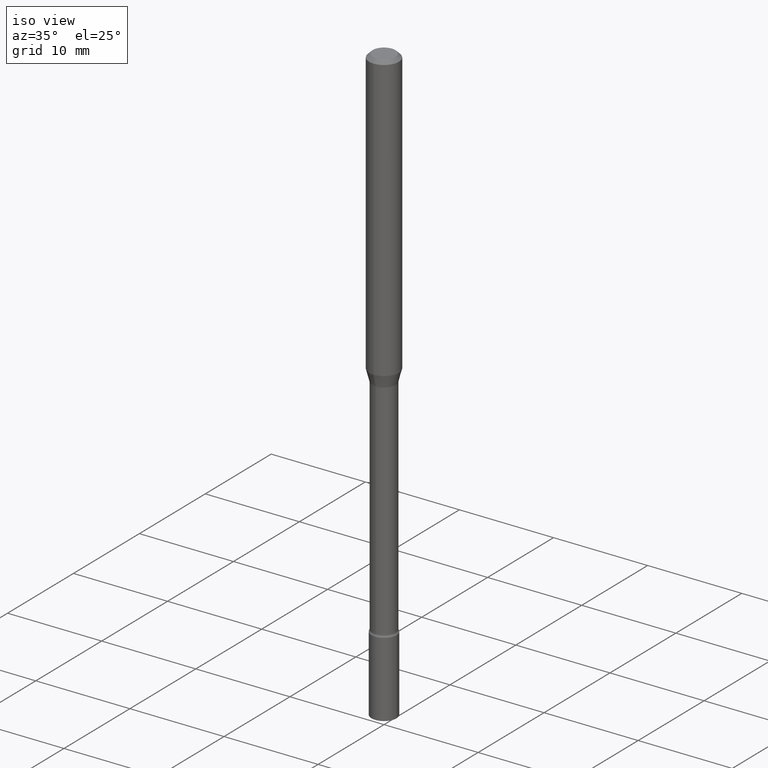
[diagram: clean part render]
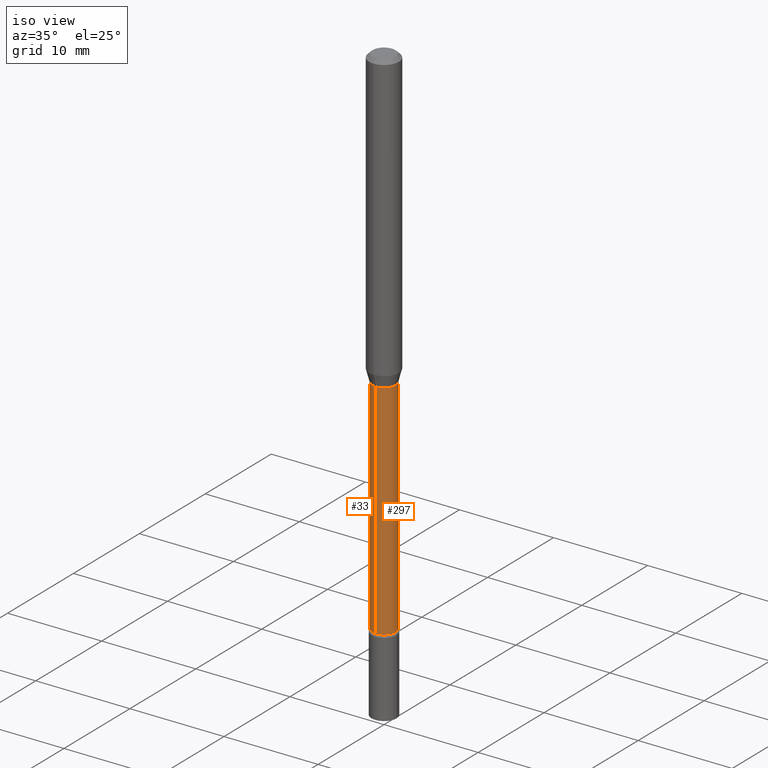
[diagram: same view with one multi-face feature highlighted, each face labeled with its STEP entity id]
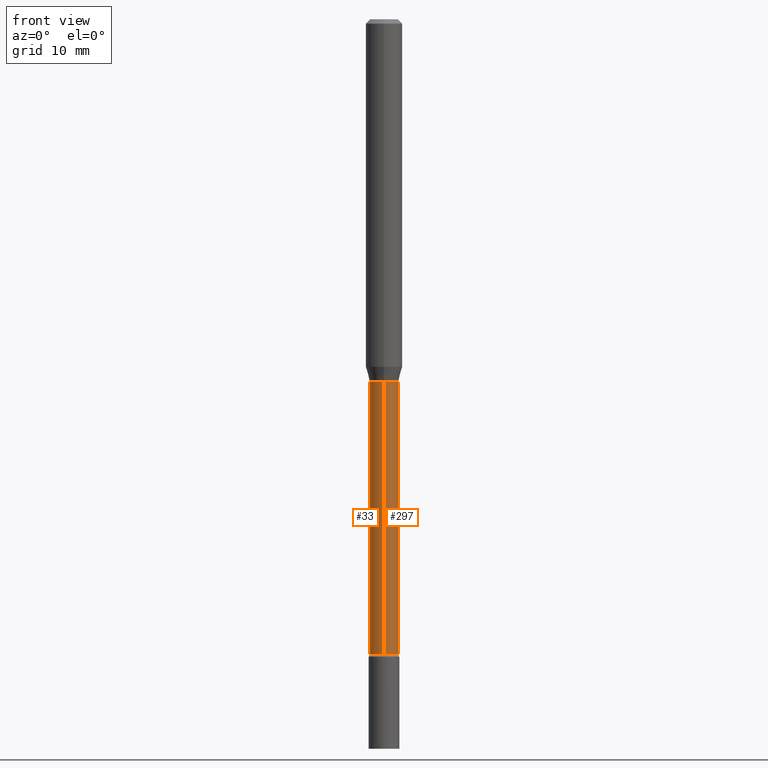
[diagram: same view with one multi-face feature highlighted, each face labeled with its STEP entity id]
A machine part, iso view. The highlighted faces form ONE feature: a constant-radius fillet chain: 2 tangent blend faces with common blend radius 1.2535 mm. The faces share edges in the B-rep.
A second angle (front view) of the same feature is appended — it is thin or edge-on in the first view.
Their STEP definitions:
[1] entity #33 (Cylinder):
#9 = DIRECTION ( 'NONE',  ( -2.445520985940989068E-29, 3.491406614462877514E-15, 1.000000000000000000 ) ) ;
#15 = CYLINDRICAL_SURFACE ( 'NONE', #474, 0.04935000000000002579 ) ;
#33 = ADVANCED_FACE ( 'NONE', ( #113 ), #15, .T. ) ;
#34 = VERTEX_POINT ( 'NONE', #331 ) ;
#37 = VERTEX_POINT ( 'NONE', #88 ) ;
#42 = DIRECTION ( 'NONE',  ( -2.445520985940989068E-29, 3.491406614462877514E-15, 1.000000000000000000 ) ) ;
#52 = DIRECTION ( 'NONE',  ( -6.982962677686265133E-15, -1.000000000000000000, 3.491406614462877119E-15 ) ) ;
#67 = CIRCLE ( 'NONE', #118, 0.04934999999999997722 ) ;
#79 = CARTESIAN_POINT ( 'NONE',  ( -3.446092081438173769E-16, -0.04935000000000002579, 1.723009164237430813E-16 ) ) ;
#88 = CARTESIAN_POINT ( 'NONE',  ( 3.618438881858846483E-16, 0.04934999999999246934, -2.175803397366418590 ) ) ;
#98 = ORIENTED_EDGE ( 'NONE', *, *, #308, .F. ) ;
#105 = DIRECTION ( 'NONE',  ( -2.445520985940989068E-29, 3.491406614462877514E-15, 1.000000000000000000 ) ) ;
#112 = EDGE_CURVE ( 'NONE', #37, #467, #157, .T. ) ;
#113 = FACE_OUTER_BOUND ( 'NONE', #465, .T. ) ;
#114 = LINE ( 'NONE', #234, #346 ) ;
#118 = AXIS2_PLACEMENT_3D ( 'NONE', #348, #351, #513 ) ;
#122 = CARTESIAN_POINT ( 'NONE',  ( 0.000000000000000000, 0.000000000000000000, 0.000000000000000000 ) ) ;
#157 = CIRCLE ( 'NONE', #345, 0.04935000000000006742 ) ;
#177 = CARTESIAN_POINT ( 'NONE',  ( -3.446092081437867100E-16, -0.04935000000000431403, -1.242174787463810715 ) ) ;
#202 = CARTESIAN_POINT ( 'NONE',  ( -3.446092081437644740E-16, -0.04935000000000766551, -2.175803397366418146 ) ) ;
#203 = EDGE_CURVE ( 'NONE', #34, #414, #67, .T. ) ;
#234 = CARTESIAN_POINT ( 'NONE',  ( 3.506528400976095264E-16, 0.04935000000000002579, -1.723009164237430813E-16 ) ) ;
#250 = ORIENTED_EDGE ( 'NONE', *, *, #203, .F. ) ;
#277 = LINE ( 'NONE', #79, #483 ) ;
#289 = CARTESIAN_POINT ( 'NONE',  ( 5.320972869541277230E-29, -7.596614373335913893E-15, -2.175803397366418590 ) ) ;
#301 = EDGE_CURVE ( 'NONE', #467, #414, #277, .T. ) ;
#308 = EDGE_CURVE ( 'NONE', #37, #34, #114, .T. ) ;
#319 = DIRECTION ( 'NONE',  ( -2.445520985940989068E-29, 3.491406614462877514E-15, 1.000000000000000000 ) ) ;
#331 = CARTESIAN_POINT ( 'NONE',  ( 3.506528400976626759E-16, 0.04934999999999563347, -1.242174787463811381 ) ) ;
#345 = AXIS2_PLACEMENT_3D ( 'NONE', #289, #319, #455 ) ;
#346 = VECTOR ( 'NONE', #42, 39.37007874015748143 ) ;
#348 = CARTESIAN_POINT ( 'NONE',  ( 3.037764510949538062E-29, -4.336937269270169085E-15, -1.242174787463811159 ) ) ;
#351 = DIRECTION ( 'NONE',  ( -2.445520985940989068E-29, 3.491406614462877514E-15, 1.000000000000000000 ) ) ;
#414 = VERTEX_POINT ( 'NONE', #177 ) ;
#455 = DIRECTION ( 'NONE',  ( -6.982962677686265133E-15, -1.000000000000000000, 5.535659561629705166E-15 ) ) ;
#465 = EDGE_LOOP ( 'NONE', ( #98, #492, #489, #250 ) ) ;
#467 = VERTEX_POINT ( 'NONE', #202 ) ;
#474 = AXIS2_PLACEMENT_3D ( 'NONE', #122, #105, #52 ) ;
#483 = VECTOR ( 'NONE', #9, 39.37007874015748143 ) ;
#489 = ORIENTED_EDGE ( 'NONE', *, *, #301, .T. ) ;
#492 = ORIENTED_EDGE ( 'NONE', *, *, #112, .T. ) ;
#513 = DIRECTION ( 'NONE',  ( -6.982962677686265922E-15, -1.000000000000000000, 5.535659561629715421E-15 ) ) ;
[2] entity #297 (Cylinder):
#9 = DIRECTION ( 'NONE',  ( -2.445520985940989068E-29, 3.491406614462877514E-15, 1.000000000000000000 ) ) ;
#31 = DIRECTION ( 'NONE',  ( -6.982962677686265133E-15, -1.000000000000000000, 5.535659561629705166E-15 ) ) ;
#34 = VERTEX_POINT ( 'NONE', #331 ) ;
#37 = VERTEX_POINT ( 'NONE', #88 ) ;
#42 = DIRECTION ( 'NONE',  ( -2.445520985940989068E-29, 3.491406614462877514E-15, 1.000000000000000000 ) ) ;
#79 = CARTESIAN_POINT ( 'NONE',  ( -3.446092081438173769E-16, -0.04935000000000002579, 1.723009164237430813E-16 ) ) ;
#81 = CARTESIAN_POINT ( 'NONE',  ( 0.000000000000000000, 0.000000000000000000, 0.000000000000000000 ) ) ;
#88 = CARTESIAN_POINT ( 'NONE',  ( 3.618438881858846483E-16, 0.04934999999999246934, -2.175803397366418590 ) ) ;
#110 = DIRECTION ( 'NONE',  ( -2.445520985940989068E-29, 3.491406614462877514E-15, 1.000000000000000000 ) ) ;
#114 = LINE ( 'NONE', #234, #346 ) ;
#160 = FACE_OUTER_BOUND ( 'NONE', #180, .T. ) ;
#177 = CARTESIAN_POINT ( 'NONE',  ( -3.446092081437867100E-16, -0.04935000000000431403, -1.242174787463810715 ) ) ;
#180 = EDGE_LOOP ( 'NONE', ( #220, #501, #512, #424 ) ) ;
#187 = AXIS2_PLACEMENT_3D ( 'NONE', #81, #110, #367 ) ;
#198 = EDGE_CURVE ( 'NONE', #467, #37, #368, .T. ) ;
#202 = CARTESIAN_POINT ( 'NONE',  ( -3.446092081437644740E-16, -0.04935000000000766551, -2.175803397366418146 ) ) ;
#217 = DIRECTION ( 'NONE',  ( -2.445520985940989068E-29, 3.491406614462877514E-15, 1.000000000000000000 ) ) ;
#220 = ORIENTED_EDGE ( 'NONE', *, *, #198, .T. ) ;
#234 = CARTESIAN_POINT ( 'NONE',  ( 3.506528400976095264E-16, 0.04935000000000002579, -1.723009164237430813E-16 ) ) ;
#253 = CIRCLE ( 'NONE', #303, 0.04934999999999997722 ) ;
#277 = LINE ( 'NONE', #79, #483 ) ;
#297 = ADVANCED_FACE ( 'NONE', ( #160 ), #321, .T. ) ;
#301 = EDGE_CURVE ( 'NONE', #467, #414, #277, .T. ) ;
#303 = AXIS2_PLACEMENT_3D ( 'NONE', #502, #349, #380 ) ;
#308 = EDGE_CURVE ( 'NONE', #37, #34, #114, .T. ) ;
#321 = CYLINDRICAL_SURFACE ( 'NONE', #187, 0.04935000000000002579 ) ;
#331 = CARTESIAN_POINT ( 'NONE',  ( 3.506528400976626759E-16, 0.04934999999999563347, -1.242174787463811381 ) ) ;
#346 = VECTOR ( 'NONE', #42, 39.37007874015748143 ) ;
#349 = DIRECTION ( 'NONE',  ( -2.445520985940989068E-29, 3.491406614462877514E-15, 1.000000000000000000 ) ) ;
#357 = AXIS2_PLACEMENT_3D ( 'NONE', #468, #217, #31 ) ;
#367 = DIRECTION ( 'NONE',  ( -6.982962677686265133E-15, -1.000000000000000000, 3.491406614462877119E-15 ) ) ;
#368 = CIRCLE ( 'NONE', #357, 0.04935000000000006742 ) ;
#380 = DIRECTION ( 'NONE',  ( -6.982962677686265922E-15, -1.000000000000000000, 5.535659561629715421E-15 ) ) ;
#414 = VERTEX_POINT ( 'NONE', #177 ) ;
#424 = ORIENTED_EDGE ( 'NONE', *, *, #301, .F. ) ;
#467 = VERTEX_POINT ( 'NONE', #202 ) ;
#468 = CARTESIAN_POINT ( 'NONE',  ( 5.320972869541277230E-29, -7.596614373335913893E-15, -2.175803397366418590 ) ) ;
#483 = VECTOR ( 'NONE', #9, 39.37007874015748143 ) ;
#488 = EDGE_CURVE ( 'NONE', #414, #34, #253, .T. ) ;
#501 = ORIENTED_EDGE ( 'NONE', *, *, #308, .T. ) ;
#502 = CARTESIAN_POINT ( 'NONE',  ( 3.037764510949538062E-29, -4.336937269270169085E-15, -1.242174787463811159 ) ) ;
#512 = ORIENTED_EDGE ( 'NONE', *, *, #488, .F. ) ;